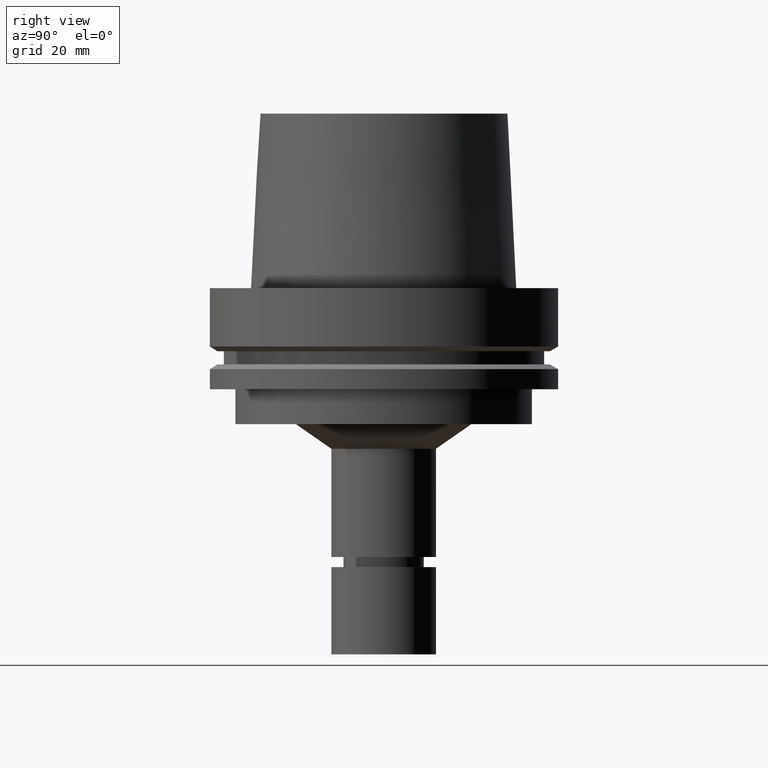
[diagram: clean part render]
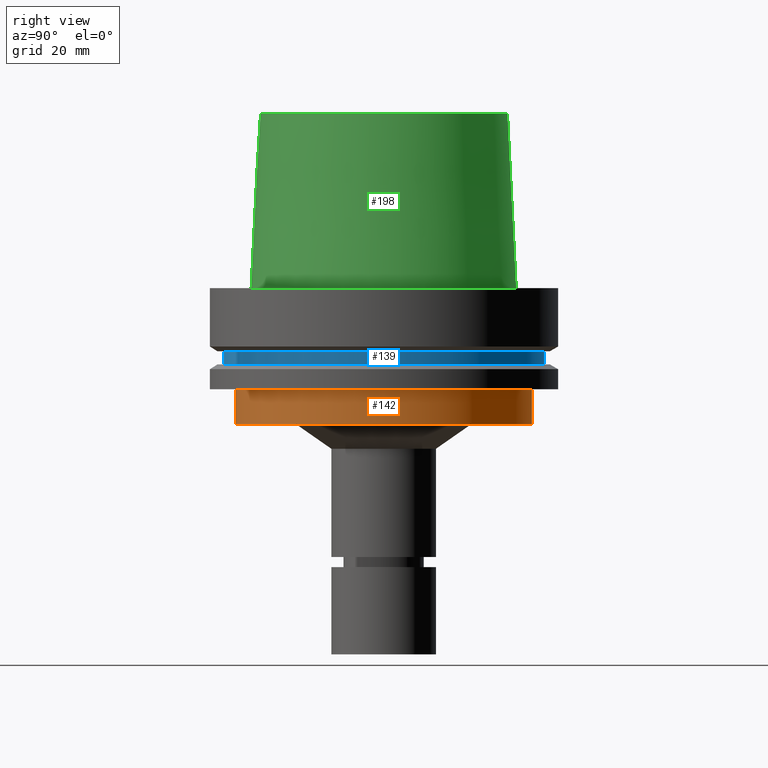
[diagram: same view with three faces highlighted in distinct colors, each labeled with its STEP entity id]
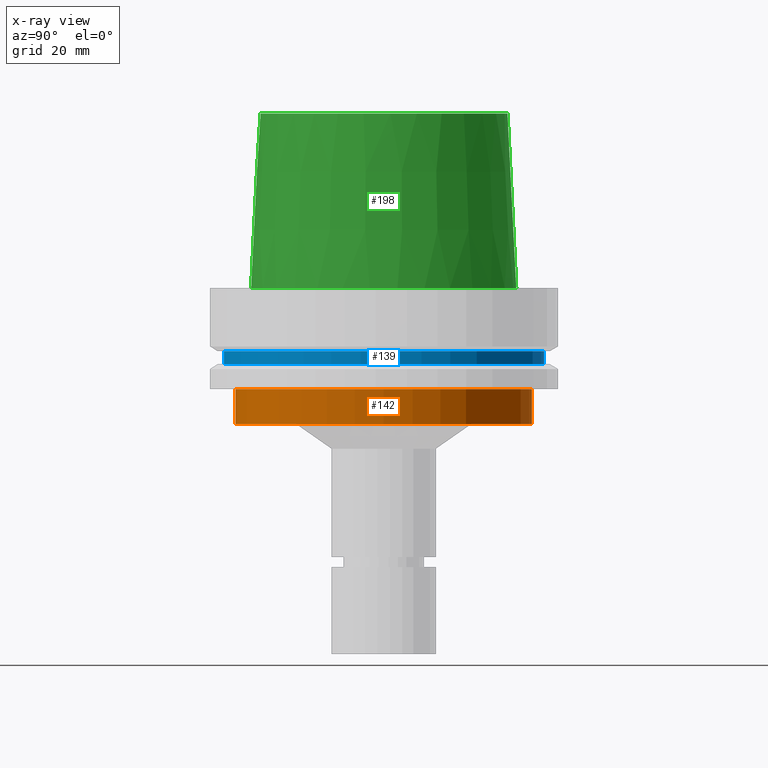
[diagram: x-ray of the same camera — body ghosted, the three highlighted faces saturated]
A machine part, right view with three faces highlighted in distinct colors.
The next image is the same camera in x-ray (body ghosted, the three faces saturated) — at least one of them is partly hidden behind the body in this view.
Their STEP definitions:

[orange] entity #142 — the highlighted cylindrical surface (bore or boss wall) has radius 42.5 mm, axis along (0, 0, -1).
#113=EDGE_CURVE('Unnamed[1]',#272,#272,#273,.T.);
#129=EDGE_CURVE('Unnamed[1]',#297,#297,#298,.T.);
#142=ADVANCED_FACE('Unnamed[1]',(#315,#316),#317,.T.);
#272=VERTEX_POINT('',#484);
#273=CIRCLE('',#485,42.5);
#297=VERTEX_POINT('',#516);
#298=CIRCLE('',#517,42.5);
#315=FACE_BOUND('',#538,.T.);
#316=FACE_BOUND('',#539,.T.);
#317=CYLINDRICAL_SURFACE('',#540,42.5);
#484=CARTESIAN_POINT('',(2.38806125833734E-015,42.5,-39.0));
#485=AXIS2_PLACEMENT_3D('',#713,#714,#715);
#516=CARTESIAN_POINT('',(1.77573785876366E-015,42.5,-29.0));
#517=AXIS2_PLACEMENT_3D('',#740,#741,#742);
#538=EDGE_LOOP('',(#757));
#539=EDGE_LOOP('',(#758));
#540=AXIS2_PLACEMENT_3D('',#759,#760,#761);
#713=CARTESIAN_POINT('',(2.38806125833734E-015,4.77612251667468E-015,-39.0));
#714=DIRECTION('',(6.12323399573677E-017,1.22464679914735E-016,-1.0));
#715=DIRECTION('',(-1.23259516440783E-032,1.0,1.22464679914735E-016));
#740=CARTESIAN_POINT('',(1.77573785876366E-015,3.55147571752733E-015,-29.0));
#741=DIRECTION('',(6.12323399573677E-017,1.22464679914735E-016,-1.0));
#742=DIRECTION('',(-1.23259516440783E-032,1.0,1.22464679914735E-016));
#757=ORIENTED_EDGE('',*,*,#113,.F.);
#758=ORIENTED_EDGE('',*,*,#129,.T.);
#759=CARTESIAN_POINT('',(2.0818995585505E-015,4.163799117101E-015,-34.0));
#760=DIRECTION('',(6.12323399573677E-017,1.22464679914735E-016,-1.0));
#761=DIRECTION('',(-1.23259516440783E-032,1.0,1.22464679914735E-016));

[blue] entity #139 — the highlighted cylindrical surface (bore or boss wall) has radius 46 mm, axis along (0, 0, -1).
#111=EDGE_CURVE('Unnamed[1]',#269,#269,#270,.T.);
#139=ADVANCED_FACE('Unnamed[1]',(#310,#311),#312,.T.);
#193=EDGE_CURVE('Unnamed[1]',#394,#394,#395,.T.);
#269=VERTEX_POINT('',#480);
#270=CIRCLE('',#481,46.0);
#310=FACE_BOUND('',#532,.T.);
#311=FACE_BOUND('',#533,.T.);
#312=CYLINDRICAL_SURFACE('',#534,46.0);
#394=VERTEX_POINT('',#636);
#395=CIRCLE('',#637,46.0);
#480=CARTESIAN_POINT('',(1.33945743656742E-015,46.0,-21.875));
#481=AXIS2_PLACEMENT_3D('',#710,#711,#712);
#532=EDGE_LOOP('',(#751));
#533=EDGE_LOOP('',(#752));
#534=AXIS2_PLACEMENT_3D('',#753,#754,#755);
#636=CARTESIAN_POINT('',(1.10983616172729E-015,46.0,-18.125));
#637=AXIS2_PLACEMENT_3D('',#845,#846,#847);
#710=CARTESIAN_POINT('',(1.33945743656742E-015,2.67891487313484E-015,-21.875));
#711=DIRECTION('',(6.12323399573677E-017,1.22464679914735E-016,-1.0));
#712=DIRECTION('',(-1.23259516440783E-032,1.0,1.22464679914735E-016));
#751=ORIENTED_EDGE('',*,*,#111,.F.);
#752=ORIENTED_EDGE('',*,*,#193,.T.);
#753=CARTESIAN_POINT('',(1.22464679914735E-015,2.44929359829471E-015,-20.0));
#754=DIRECTION('',(6.12323399573677E-017,1.22464679914735E-016,-1.0));
#755=DIRECTION('',(-1.23259516440783E-032,1.0,1.22464679914735E-016));
#845=CARTESIAN_POINT('',(1.10983616172729E-015,2.21967232345458E-015,-18.125));
#846=DIRECTION('',(6.12323399573677E-017,1.22464679914735E-016,-1.0));
#847=DIRECTION('',(-1.23259516440783E-032,1.0,1.22464679914735E-016));

[green] entity #198 — the highlighted conical surface has half-angle 2.862 deg.
#159=EDGE_CURVE('Unnamed[1]',#343,#343,#344,.T.);
#195=EDGE_CURVE('Unnamed[1]',#397,#397,#398,.T.);
#198=ADVANCED_FACE('Unnamed[1]',(#401,#402),#403,.T.);
#343=VERTEX_POINT('',#572);
#344=CIRCLE('',#573,37.9999999999349);
#397=VERTEX_POINT('',#640);
#398=CIRCLE('',#641,35.5000000015618);
#401=FACE_BOUND('',#645,.T.);
#402=FACE_BOUND('',#646,.T.);
#403=CONICAL_SURFACE('',#647,36.7500000007484,0.0499583956894843);
#572=CARTESIAN_POINT('',(-3.3636548776863E-032,37.9999999999349,-2.44634216324803E-015));
#573=AXIS2_PLACEMENT_3D('',#791,#792,#793);
#640=CARTESIAN_POINT('',(-3.06161699786838E-015,35.5000000015618,50.0));
#641=AXIS2_PLACEMENT_3D('',#848,#849,#850);
#645=EDGE_LOOP('',(#852));
#646=EDGE_LOOP('',(#853));
#647=AXIS2_PLACEMENT_3D('',#854,#855,#856);
#791=CARTESIAN_POINT('',(0.0,0.0,0.0));
#792=DIRECTION('',(6.12323399573677E-017,1.22464679914735E-016,-1.0));
#793=DIRECTION('',(-1.23259516440783E-032,1.0,1.22464679914735E-016));
#848=CARTESIAN_POINT('',(-3.06161699786838E-015,-6.12323399573676E-015,50.0));
#849=DIRECTION('',(6.12323399573677E-017,1.22464679914735E-016,-1.0));
#850=DIRECTION('',(-1.23259516440783E-032,1.0,1.22464679914735E-016));
#852=ORIENTED_EDGE('',*,*,#159,.F.);
#853=ORIENTED_EDGE('',*,*,#195,.T.);
#854=CARTESIAN_POINT('',(-1.53080849893419E-015,-3.06161699786838E-015,25.0));
#855=DIRECTION('',(6.12323399573676E-017,1.22464679914735E-016,-1.0));
#856=DIRECTION('',(-1.23259516440783E-032,1.0,1.22464679914735E-016));